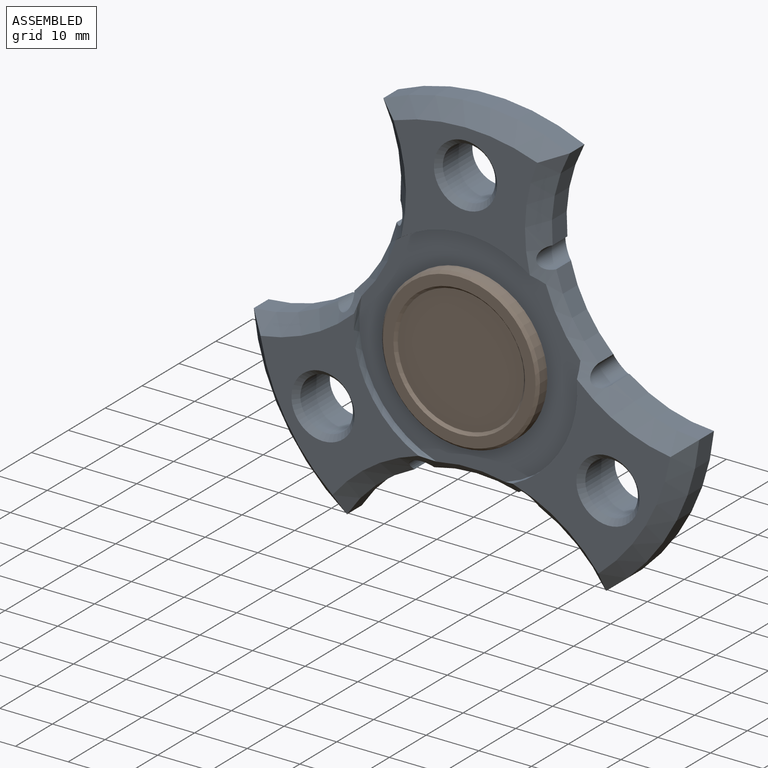
[diagram: assembled view]
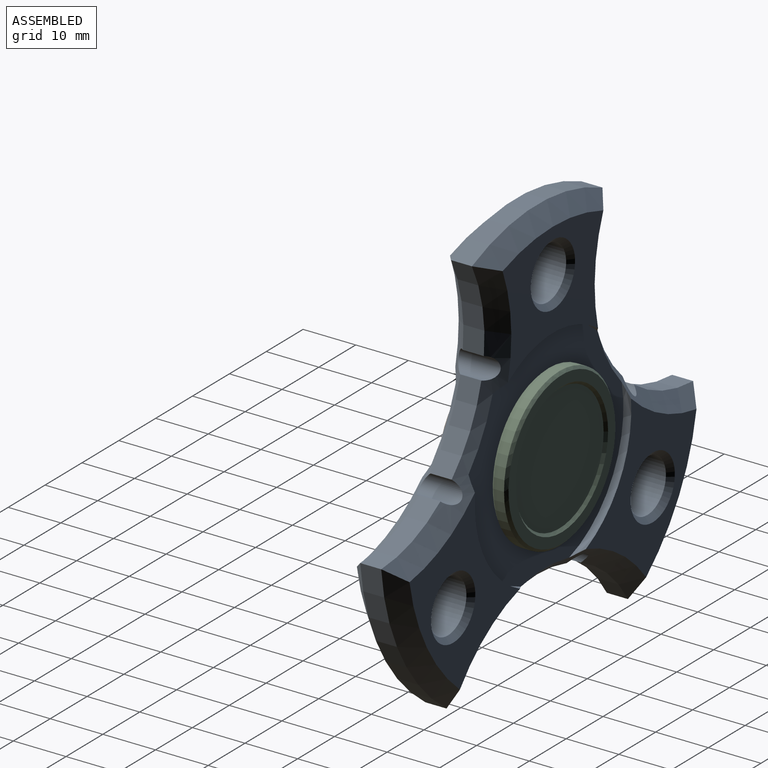
[diagram: assembled view, second angle]
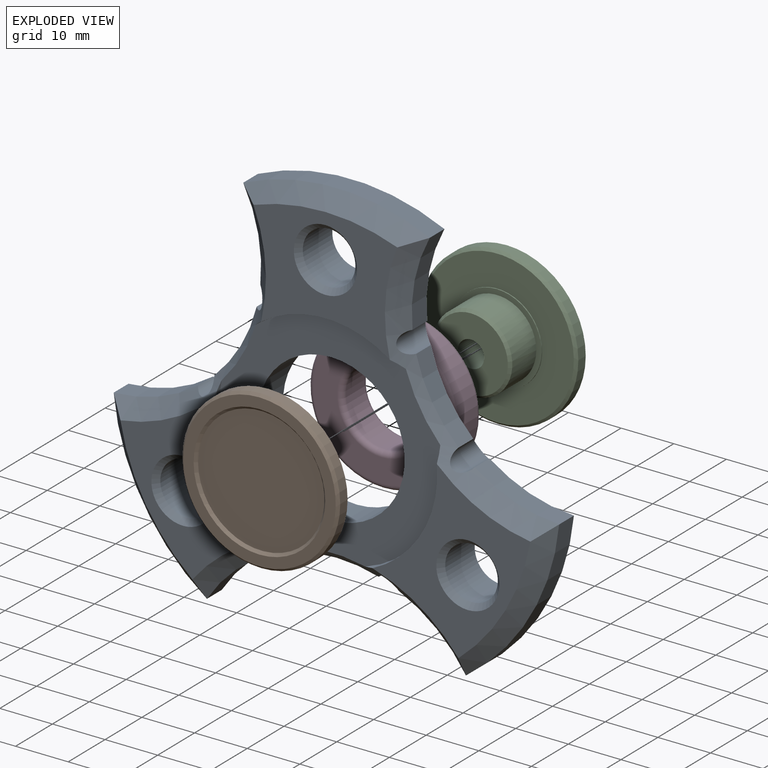
[diagram: exploded view]
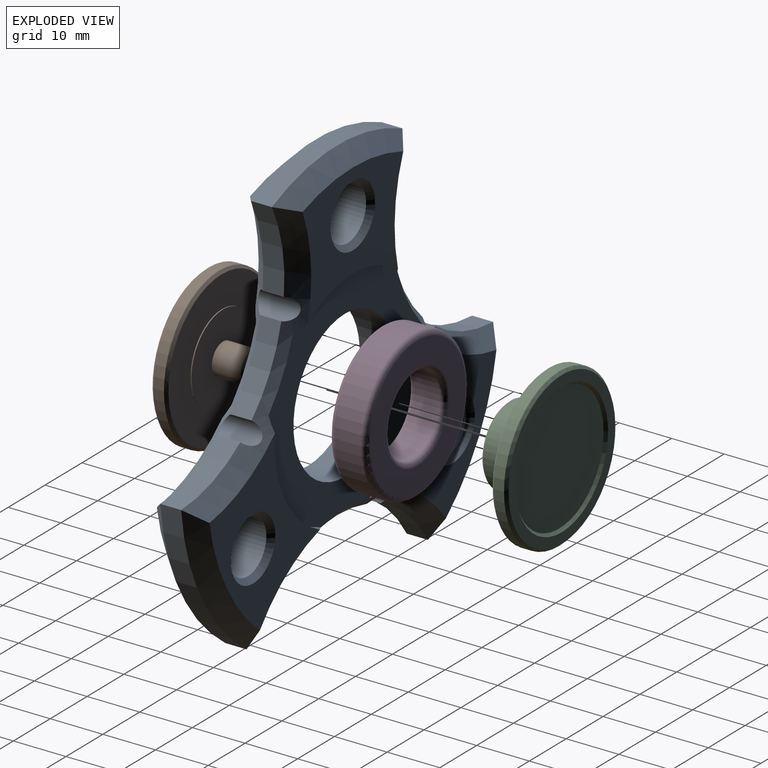
[diagram: exploded view, second angle]
ASSEMBLY  parts=4 mates=3
PART A: 54 faces, bbox 84.6x10x77.2 mm
  f0: cylinder r=14mm len=28mm, axis (0,-1,0), area 615.8mm2, adj f28,f53
  f1: plane 27.32x22.12mm, normal (0,1,0), area 335.5mm2, adj f6,f16,f29,f43,f50
  f2: plane 32.25x29.98mm, normal (0,1,0), area 335.5mm2, adj f6,f11,f30,f41,f51
  f3: plane 32.25x29.98mm, normal (0,1,0), area 335.5mm2, adj f11,f16,f31,f42,f52
  f4: cylinder r=29mm len=13.95mm, axis (0,-1,0), area 65.3mm2, adj f6,f7,f48,f49
  f5: cylinder r=29mm len=16.66mm, axis (0,-1,0), area 68.9mm2, adj f6,f7,f25,f49
  f6: cone r=29mm half-angle=45deg, axis (0,1,0), area 197.1mm2, adj f1,f2,f4,f5,f8,f29,f30,f48
  f7: cone r=29mm half-angle=45deg, axis (0,-1,0), area 197.1mm2, adj f4,f5,f8,f21,f23,f26,f27,f28
  f8: cylinder r=29mm len=16.05mm, axis (0,-1,0), area 68.9mm2, adj f6,f7,f19,f48
  f9: cylinder r=29mm len=16.1mm, axis (0,-1,0), area 65.3mm2, adj f11,f12,f46,f47
  f10: cylinder r=29mm len=12.8mm, axis (0,-1,0), area 68.9mm2, adj f11,f12,f19,f47
  f11: cone r=29mm half-angle=45deg, axis (0,1,0), area 197.1mm2, adj f2,f3,f9,f10,f13,f30,f31,f46
  f12: cone r=29mm half-angle=45deg, axis (0,-1,0), area 197.1mm2, adj f9,f10,f13,f21,f22,f23,f24,f28
  f13: cylinder r=29mm len=12.8mm, axis (0,-1,0), area 68.9mm2, adj f11,f12,f20,f46
  f14: cylinder r=29mm len=13.95mm, axis (0,-1,0), area 65.3mm2, adj f16,f17,f44,f45
  f15: cylinder r=29mm len=16.05mm, axis (0,-1,0), area 68.9mm2, adj f16,f17,f20,f45
  f16: cone r=29mm half-angle=45deg, axis (0,1,0), area 197.1mm2, adj f1,f3,f14,f15,f18,f29,f31,f44
  f17: cone r=29mm half-angle=45deg, axis (0,-1,0), area 197.1mm2, adj f14,f15,f18,f22,f24,f26,f27,f28
  f18: cylinder r=29mm len=16.66mm, axis (0,-1,0), area 68.9mm2, adj f16,f17,f25,f44
  f19: cylinder r=42.5mm len=30.67mm, axis (0,-1,0), area 146.1mm2, adj f8,f10,f30,f34
  f20: cylinder r=42.5mm len=30.67mm, axis (0,-1,0), area 146.1mm2, adj f13,f15,f31,f33
  f21: plane 32.25x29.98mm, normal (0,-1,0), area 335.5mm2, adj f7,f12,f23,f34,f39
  f22: plane 32.25x29.98mm, normal (0,-1,0), area 335.5mm2, adj f12,f17,f24,f33,f38
  f23: cylinder r=21.25mm len=24.64mm, axis (0,-1,0), area 42.9mm2, adj f7,f12,f21,f28
  f24: cylinder r=21.25mm len=24.64mm, axis (0,-1,0), area 42.9mm2, adj f12,f17,f22,f28
  f25: cylinder r=42.5mm len=35.41mm, axis (0,-1,0), area 146.1mm2, adj f5,f18,f29,f32
  f26: plane 27.32x22.12mm, normal (0,-1,0), area 335.5mm2, adj f7,f17,f27,f32,f40
  f27: cylinder r=21.25mm len=28.45mm, axis (0,-1,0), area 42.9mm2, adj f7,f17,f26,f28
  f28: plane 42.5x41.46mm, normal (0,-1,0), area 756.8mm2, adj f0,f7,f12,f17,f23,f24,f27
  f29: cone r=42.5mm half-angle=45deg, axis (0,-1,0), area 136.3mm2, adj f1,f6,f16,f25
  f30: cone r=42.5mm half-angle=45deg, axis (0,-1,0), area 136.3mm2, adj f2,f6,f11,f19
  f31: cone r=42.5mm half-angle=45deg, axis (0,-1,0), area 136.3mm2, adj f3,f11,f16,f20
  f32: cone r=39.5mm half-angle=45deg, axis (0,1,0), area 136.3mm2, adj f7,f17,f25,f26
  f33: cone r=39.5mm half-angle=45deg, axis (0,1,0), area 136.3mm2, adj f12,f17,f20,f22
  f34: cone r=39.5mm half-angle=45deg, axis (0,1,0), area 136.3mm2, adj f7,f12,f19,f21
  f35: cylinder r=5mm len=10mm, axis (0,1,0), area 251.3mm2, adj f40,f43
  f36: cylinder r=5mm len=10mm, axis (0,1,0), area 251.3mm2, adj f38,f42
  f37: cylinder r=5mm len=10mm, axis (0,1,0), area 251.3mm2, adj f39,f41
  f38: cone r=6mm half-angle=45deg, axis (0,-1,0), area 48.9mm2, adj f22,f36
  f39: cone r=6mm half-angle=45deg, axis (0,-1,0), area 48.9mm2, adj f21,f37
  f40: cone r=6mm half-angle=45deg, axis (0,-1,0), area 48.9mm2, adj f26,f35
  f41: cone r=5mm half-angle=45deg, axis (0,1,0), area 48.9mm2, adj f2,f37
  f42: cone r=5mm half-angle=45deg, axis (0,1,0), area 48.9mm2, adj f3,f36
  f43: cone r=5mm half-angle=45deg, axis (0,1,0), area 48.9mm2, adj f1,f35
  f44: cylinder r=2mm len=8mm, axis (0,-1,0), area 42.1mm2, adj f14,f16,f17,f18
  f45: cylinder r=2mm len=8mm, axis (0,-1,0), area 42.1mm2, adj f14,f15,f16,f17
  f46: cylinder r=2mm len=8mm, axis (0,-1,0), area 42.1mm2, adj f9,f11,f12,f13
  f47: cylinder r=2mm len=8mm, axis (0,-1,0), area 42.1mm2, adj f9,f10,f11,f12
  f48: cylinder r=2mm len=8mm, axis (0,-1,0), area 42.1mm2, adj f4,f6,f7,f8
  f49: cylinder r=2mm len=8mm, axis (0,-1,0), area 42.1mm2, adj f4,f5,f6,f7
  f50: cylinder r=21.25mm len=28.45mm, axis (0,1,0), area 42.9mm2, adj f1,f6,f16,f53
  f51: cylinder r=21.25mm len=24.64mm, axis (0,1,0), area 42.9mm2, adj f2,f6,f11,f53
  f52: cylinder r=21.25mm len=24.64mm, axis (0,1,0), area 42.9mm2, adj f3,f11,f16,f53
  f53: plane 42.5x41.46mm, normal (0,1,0), area 756.8mm2, adj f0,f6,f11,f16,f50,f51,f52
PART B: 12 faces, bbox 30x9.2x30 mm
  f0: cylinder r=15mm len=30mm, axis (0,-1,0), area 188.5mm2, adj f7,f8
  f1: plane 29x29mm, normal (0,-1,0), area 433.5mm2, adj f3,f8
  f2: plane 29x29mm, normal (0,1,0), area 169.6mm2, adj f7,f11
  f3: cylinder r=8.5mm len=17mm, axis (0,-1,0), area 10.7mm2, adj f1,f4
  f4: plane 17x17mm, normal (0,-1,0), area 198.7mm2, adj f3,f5
  f5: cylinder r=3mm len=6mm, axis (0,-1,0), area 103.7mm2, adj f4,f9
  f6: plane 5x5mm, normal (0,-1,0), area 19.6mm2, adj f9
  f7: cone r=15mm half-angle=45deg, axis (0,-1,0), area 65.5mm2, adj f0,f2
  f8: cone r=14.5mm half-angle=45deg, axis (0,1,0), area 65.5mm2, adj f0,f1
  f9: cone r=2.5mm half-angle=45deg, axis (0,1,0), area 12.2mm2, adj f5,f6
  f10: plane 24x24mm, normal (0,1,0), area 452.4mm2, adj f11
  f11: cone r=12mm half-angle=45deg, axis (0,1,0), area 54.4mm2, adj f2,f10
PART C: 14 faces, bbox 30x10.2x30 mm
  f0: cylinder r=15mm len=30mm, axis (0,-1,0), area 188.5mm2, adj f9,f10
  f1: plane 29x29mm, normal (0,-1,0), area 433.5mm2, adj f3,f10
  f2: plane 29x29mm, normal (0,1,0), area 168.1mm2, adj f9,f13
  f3: cylinder r=8.5mm len=17mm, axis (0,-1,0), area 10.7mm2, adj f1,f4
  f4: plane 17x17mm, normal (0,-1,0), area 50.3mm2, adj f3,f5
  f5: cylinder r=7.5mm len=15mm, axis (0,-1,0), area 306.3mm2, adj f4,f11
  f6: plane 14x14mm, normal (0,-1,0), area 134.3mm2, adj f8,f11
  f7: cone r=0mm half-angle=59deg, axis (0,-1,0), area 22.9mm2, adj f8
  f8: cylinder r=2.5mm len=7mm, axis (0,-1,0), area 110mm2, adj f6,f7
  f9: cone r=15mm half-angle=45deg, axis (0,-1,0), area 65.5mm2, adj f0,f2
  f10: cone r=14.5mm half-angle=45deg, axis (0,1,0), area 65.5mm2, adj f0,f1
  f11: cone r=7mm half-angle=45deg, axis (0,1,0), area 32.2mm2, adj f5,f6
  f12: plane 24.04x24.04mm, normal (0,1,0), area 453.9mm2, adj f13
  f13: cone r=12.02mm half-angle=45deg, axis (0,1,0), area 54.5mm2, adj f2,f12
PART D: 8 faces, bbox 30.3x7x30.3 mm
  f0: cylinder r=7.5mm len=15mm, axis (0,-1,0), area 235.6mm2, adj f4,f7
  f1: cylinder r=14mm len=28mm, axis (0,-1,0), area 439.8mm2, adj f5,f6
  f2: plane 26x26mm, normal (0,-1,0), area 303.9mm2, adj f6,f7
  f3: plane 26x26mm, normal (0,1,0), area 303.9mm2, adj f4,f5
  f4: torus R=8.5mm, axis (0,-1,0), area 77.6mm2, adj f0,f3
  f5: torus R=13mm, axis (0,-1,0), area 134.6mm2, adj f1,f3
  f6: torus R=13mm, axis (0,-1,0), area 134.6mm2, adj f1,f2
  f7: torus R=8.5mm, axis (0,-1,0), area 77.6mm2, adj f0,f2
PLACE A t=(0,3.5,0)mm
PLACE B rot(axis=(1,0,0),180deg) t=(0,-8.2,0)mm
PLACE C t=(0,5.2,0)mm
PLACE D t=(0,2,0)mm
MATE fastened C.f3 <-> D.f1  axis (0,-1,0) through (0,2,0)mm
MATE fastened B.f3 <-> C.f3  axis (0,1,0) through (0,-5,0)mm
MATE revolute D.f1 <-> A.f0  axis (0,-1,0) through (0,-1.5,0)mm
